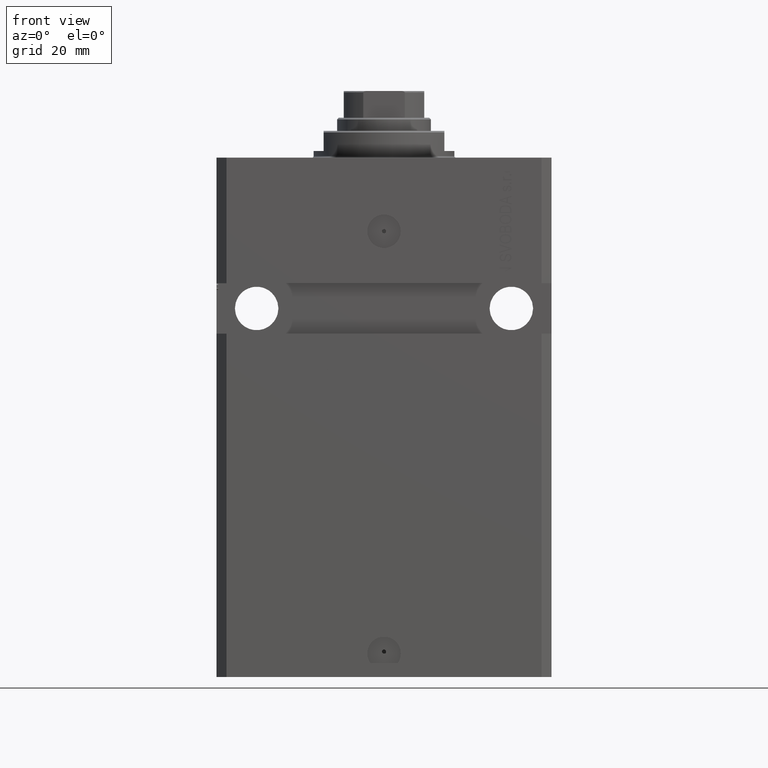
[diagram: clean part render]
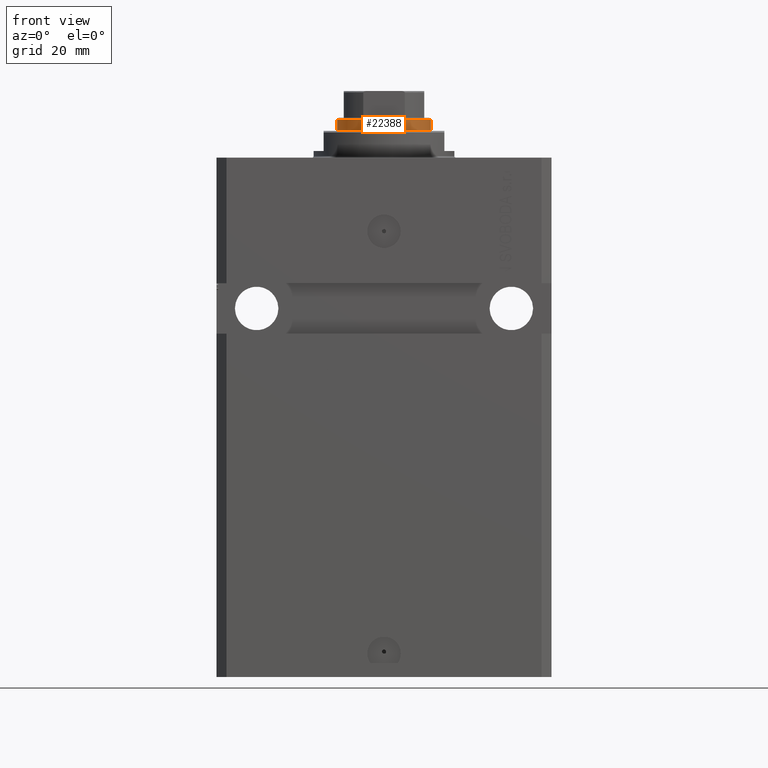
[diagram: same view with one face highlighted and labeled with its STEP entity id]
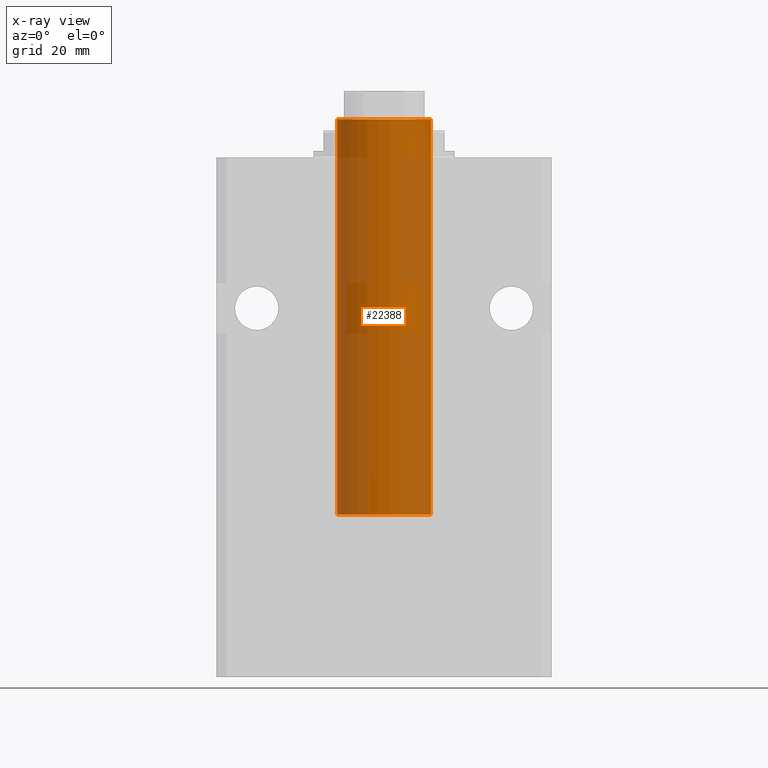
[diagram: x-ray of the same camera — body ghosted, the highlighted face saturated]
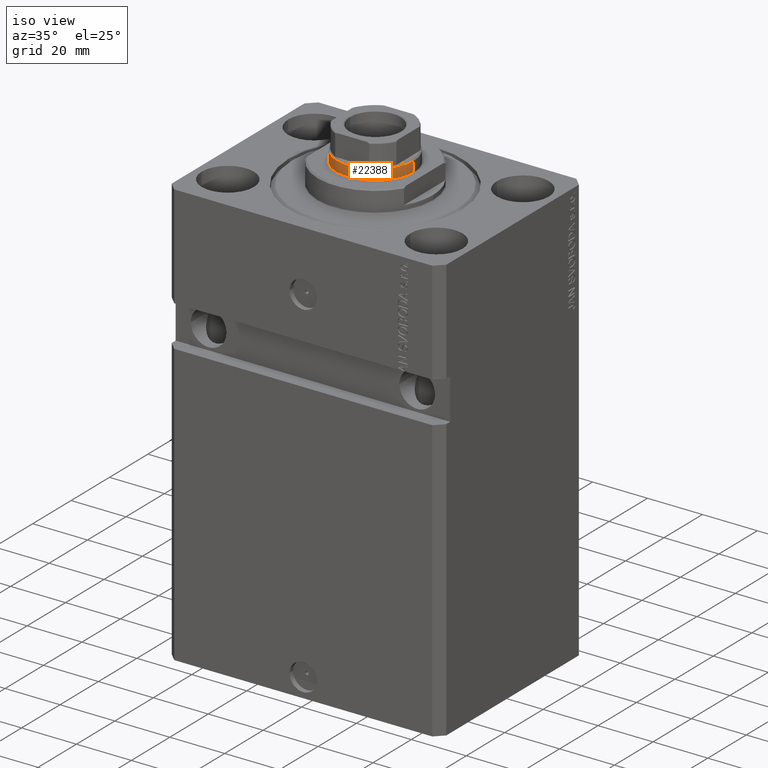
[diagram: same view with one face highlighted and labeled with its STEP entity id]
A machine part, front view. The second image highlights one B-rep face of the part: STEP entity #22388.
The next image is the same camera in x-ray: the body ghosted, the highlighted face saturated — about 55% of this face is hidden behind the body in this view.
A second angle (iso view) of the same face is appended — the face is thin or edge-on in the first view.
In plain terms, the highlighted cylindrical surface (partial cylindrical patch) has radius 14 mm, axis along (-0, -0, -1).
Its self-contained STEP definition (entity closure, byte-faithful):
#65 = EDGE_CURVE ( 'NONE', #46017, #7464, #6962, .T. ) ;
#519 = CIRCLE ( 'NONE', #45158, 14.00000000000000000 ) ;
#689 = LINE ( 'NONE', #8889, #14756 ) ;
#4747 = CARTESIAN_POINT ( 'NONE',  ( 14.00000000000000000, 1.714505518806294638E-15, 36.50000000000000000 ) ) ;
#6962 = LINE ( 'NONE', #21893, #42205 ) ;
#7155 = DIRECTION ( 'NONE',  ( 1.000000000000000000, 0.000000000000000000, 0.000000000000000000 ) ) ;
#7464 = VERTEX_POINT ( 'NONE', #18341 ) ;
#7623 = DIRECTION ( 'NONE',  ( 0.000000000000000000, 0.000000000000000000, -1.000000000000000000 ) ) ;
#8889 = CARTESIAN_POINT ( 'NONE',  ( 14.00000000000000000, 1.714505518806294638E-15, 155.0000000000000000 ) ) ;
#9751 = VERTEX_POINT ( 'NONE', #46171 ) ;
#10573 = DIRECTION ( 'NONE',  ( -0.000000000000000000, -0.000000000000000000, -1.000000000000000000 ) ) ;
#11136 = FACE_OUTER_BOUND ( 'NONE', #24753, .T. ) ;
#11758 = CARTESIAN_POINT ( 'NONE',  ( 0.000000000000000000, 0.000000000000000000, 36.50000000000000000 ) ) ;
#14756 = VECTOR ( 'NONE', #41162, 1000.000000000000000 ) ;
#15083 = EDGE_CURVE ( 'NONE', #9751, #46017, #35031, .T. ) ;
#16098 = VERTEX_POINT ( 'NONE', #4747 ) ;
#18341 = CARTESIAN_POINT ( 'NONE',  ( -14.00000000000000000, 0.000000000000000000, 36.50000000000000000 ) ) ;
#18970 = ORIENTED_EDGE ( 'NONE', *, *, #21738, .T. ) ;
#20049 = ORIENTED_EDGE ( 'NONE', *, *, #37068, .F. ) ;
#21738 = EDGE_CURVE ( 'NONE', #7464, #16098, #519, .T. ) ;
#21893 = CARTESIAN_POINT ( 'NONE',  ( -14.00000000000000000, 0.000000000000000000, 155.0000000000000000 ) ) ;
#22388 = ADVANCED_FACE ( 'NONE', ( #11136 ), #41000, .T. ) ;
#24753 = EDGE_LOOP ( 'NONE', ( #20049, #36430, #46041, #18970 ) ) ;
#25581 = CARTESIAN_POINT ( 'NONE',  ( -14.00000000000000000, 0.000000000000000000, 154.5000000000000000 ) ) ;
#25821 = DIRECTION ( 'NONE',  ( -0.000000000000000000, -0.000000000000000000, -1.000000000000000000 ) ) ;
#26055 = DIRECTION ( 'NONE',  ( -1.000000000000000000, 0.000000000000000000, 0.000000000000000000 ) ) ;
#26436 = DIRECTION ( 'NONE',  ( 1.000000000000000000, 0.000000000000000000, 0.000000000000000000 ) ) ;
#31181 = AXIS2_PLACEMENT_3D ( 'NONE', #47600, #7623, #7155 ) ;
#32798 = CARTESIAN_POINT ( 'NONE',  ( 0.000000000000000000, 0.000000000000000000, 155.0000000000000000 ) ) ;
#35031 = CIRCLE ( 'NONE', #31181, 14.00000000000000000 ) ;
#36430 = ORIENTED_EDGE ( 'NONE', *, *, #15083, .T. ) ;
#37068 = EDGE_CURVE ( 'NONE', #9751, #16098, #689, .T. ) ;
#37505 = DIRECTION ( 'NONE',  ( 0.000000000000000000, 0.000000000000000000, 1.000000000000000000 ) ) ;
#41000 = CYLINDRICAL_SURFACE ( 'NONE', #47454, 14.00000000000000000 ) ;
#41162 = DIRECTION ( 'NONE',  ( -0.000000000000000000, -0.000000000000000000, -1.000000000000000000 ) ) ;
#42205 = VECTOR ( 'NONE', #10573, 1000.000000000000000 ) ;
#45158 = AXIS2_PLACEMENT_3D ( 'NONE', #11758, #37505, #26436 ) ;
#46017 = VERTEX_POINT ( 'NONE', #25581 ) ;
#46041 = ORIENTED_EDGE ( 'NONE', *, *, #65, .T. ) ;
#46171 = CARTESIAN_POINT ( 'NONE',  ( 14.00000000000000000, 1.714505518806294638E-15, 154.5000000000000000 ) ) ;
#47454 = AXIS2_PLACEMENT_3D ( 'NONE', #32798, #25821, #26055 ) ;
#47600 = CARTESIAN_POINT ( 'NONE',  ( 0.000000000000000000, 0.000000000000000000, 154.5000000000000000 ) ) ;